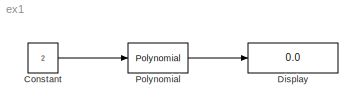
MODEL ex1
KIND model
BLOCK [Constant] Constant
  Value = 2
BLOCK [Display] Display
  Decimation = 1
  Ports = [1]
BLOCK [Reference] Polynomial  REF=simulink/Math\nOperations/Polynomial
  Ports = [1, 1]
  SourceBlock = simulink/Math\nOperations/Polynomial
  SourceType = Polyval
  coefs = [ 1 2 3 ]
LINE Constant:1 -> Polynomial:1
LINE Polynomial:1 -> Display:1
